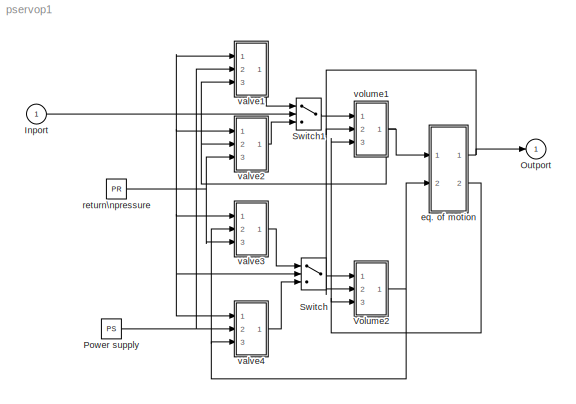
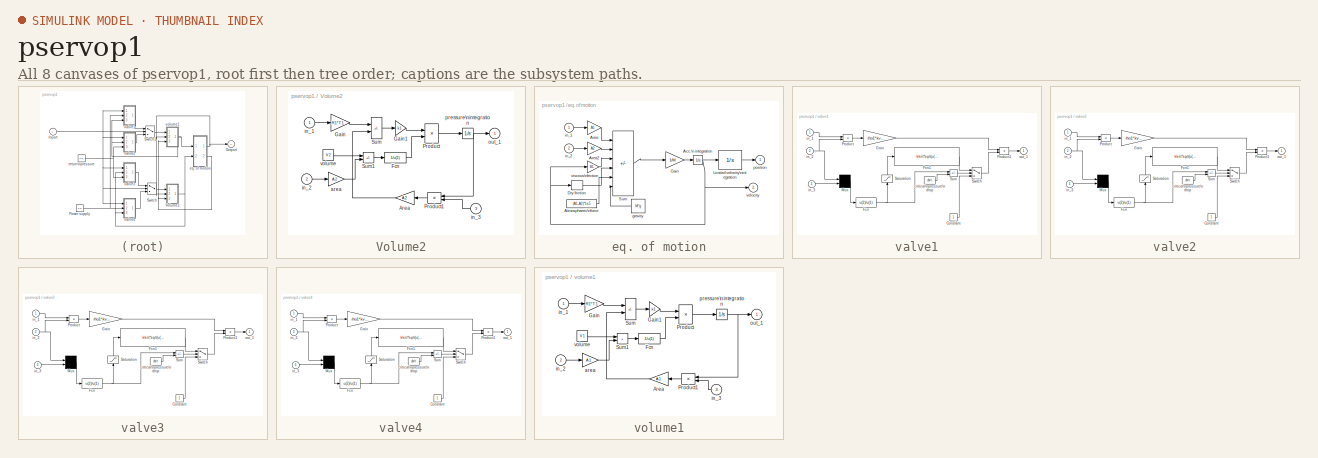
[diagram: thumbnail index - all 8 canvases of the model, root first then tree order]
MODEL pservop1
KIND model
CONFIG AbsTol = 1e-3
CONFIG FixedStep = auto
CONFIG MaxStep = 10
CONFIG RelTol = 1e-3
CONFIG Solver = ode45
CONFIG SolverMode = Auto
CONFIG StartTime = 0.0
CONFIG StopTime = 999999
BLOCK [Inport] Inport
  DataType = auto
  Interpolate = on
  Port = 1
  PortWidth = -1
  SampleTime = -1
  SignalType = auto
BLOCK [Outport] Outport
  InitialOutput = []
  OutputWhenDisabled = held
  Port = 1
BLOCK [Constant] Power supply
  Value = PS
BLOCK [Switch] Switch
  Threshold = 0
BLOCK [Switch] Switch1
  Threshold = 0
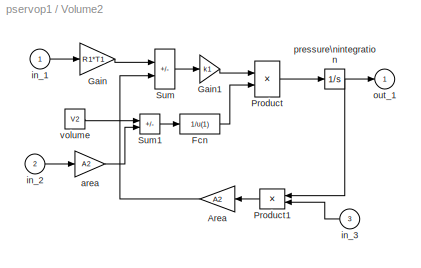
BLOCK [SubSystem] Volume2
  Ports = [3, 1, 0, 0, 0]
  ShowPortLabels = off
BLOCK [Gain] Volume2/Area
  Gain = A2
  SaturateOnIntegerOverflow = on
BLOCK [Fcn] Volume2/Fcn
  Expr = 1/u(1)
BLOCK [Gain] Volume2/Gain
  Gain = R1*T1
  SaturateOnIntegerOverflow = on
BLOCK [Gain] Volume2/Gain1
  Gain = k1
  SaturateOnIntegerOverflow = on
BLOCK [Product] Volume2/Product
  Inputs = 2
  Ports = [2, 1, 0, 0, 0]
  SaturateOnIntegerOverflow = on
BLOCK [Product] Volume2/Product1
  Inputs = 2
  Ports = [2, 1, 0, 0, 0]
  SaturateOnIntegerOverflow = on
BLOCK [Sum] Volume2/Sum
  IconShape = rectangular
  Inputs = -+
  Ports = [2, 1, 0, 0, 0]
  SaturateOnIntegerOverflow = on
BLOCK [Sum] Volume2/Sum1
  IconShape = rectangular
  Inputs = +-
  Ports = [2, 1, 0, 0, 0]
  SaturateOnIntegerOverflow = on
BLOCK [Gain] Volume2/area
  Gain = A2
  SaturateOnIntegerOverflow = on
BLOCK [Inport] Volume2/in_1
  DataType = auto
  Interpolate = on
  Port = 1
  PortWidth = -1
  SampleTime = -1
  SignalType = auto
BLOCK [Inport] Volume2/in_2
  DataType = auto
  Interpolate = on
  Port = 2
  PortWidth = -1
  SampleTime = -1
  SignalType = auto
BLOCK [Inport] Volume2/in_3
  DataType = auto
  Interpolate = on
  Port = 3
  PortWidth = -1
  SampleTime = -1
  SignalType = auto
BLOCK [Outport] Volume2/out_1
  InitialOutput = []
  OutputWhenDisabled = held
  Port = 1
BLOCK [Integrator] Volume2/pressure\nintegration
  AbsoluteTolerance = auto
  ExternalReset = none
  InitialCondition = P20
  InitialConditionSource = internal
  LimitOutput = off
  LowerSaturationLimit = -inf
  Ports = [1, 1, 0, 0, 0]
  ShowSaturationPort = off
  ShowStatePort = off
  UpperSaturationLimit = inf
BLOCK [Constant] Volume2/volume
  Value = V2
BLOCK [SubSystem] eq. of motion
  Ports = [2, 2, 0, 0, 0]
  ShowPortLabels = off
BLOCK [Integrator] eq. of motion/Acc.\n integration
  AbsoluteTolerance = auto
  ExternalReset = none
  InitialCondition = 0
  InitialConditionSource = internal
  LimitOutput = off
  LowerSaturationLimit = -inf
  Ports = [1, 1, 0, 0, 0]
  ShowSaturationPort = off
  ShowStatePort = off
  UpperSaturationLimit = inf
BLOCK [Gain] eq. of motion/Area
  Gain = A1
  SaturateOnIntegerOverflow = on
BLOCK [Gain] eq. of motion/Area2
  Gain = A2
  SaturateOnIntegerOverflow = on
BLOCK [Constant] eq. of motion/Atmosphaeric\nforce
  Value = (A1-A2)*1e5
BLOCK [Relay] eq. of motion/Dry friction
  OffOutputValue = -Fdry
  OffSwitchValue = 0
  OnOutputValue = Fdry
  OnSwitchValue = 0
BLOCK [Gain] eq. of motion/Gain
  Gain = 1/M
  SaturateOnIntegerOverflow = on
BLOCK [Integrator] eq. of motion/Limited velocity\nintegration
  AbsoluteTolerance = auto
  ExternalReset = none
  InitialCondition = X0
  InitialConditionSource = internal
  LimitOutput = on
  LowerSaturationLimit = -0.245
  Ports = [1, 1, 0, 0, 0]
  ShowSaturationPort = off
  ShowStatePort = off
  UpperSaturationLimit = 0.245
BLOCK [Sum] eq. of motion/Sum
  IconShape = rectangular
  Inputs = +----+
  Ports = [6, 1, 0, 0, 0]
  SaturateOnIntegerOverflow = on
BLOCK [Constant] eq. of motion/gravity
  Value = M*g
BLOCK [Inport] eq. of motion/in_1
  DataType = auto
  Interpolate = on
  Port = 1
  PortWidth = -1
  SampleTime = -1
  SignalType = auto
BLOCK [Inport] eq. of motion/in_2
  DataType = auto
  Interpolate = on
  Port = 2
  PortWidth = -1
  SampleTime = -1
  SignalType = auto
BLOCK [Outport] eq. of motion/position
  InitialOutput = []
  OutputWhenDisabled = held
  Port = 1
BLOCK [Outport] eq. of motion/velocity
  InitialOutput = []
  OutputWhenDisabled = held
  Port = 2
BLOCK [Gain] eq. of motion/viscous\nfriction
  Gain = B1
  SaturateOnIntegerOverflow = on
BLOCK [Constant] return\npressure
  Value = PR
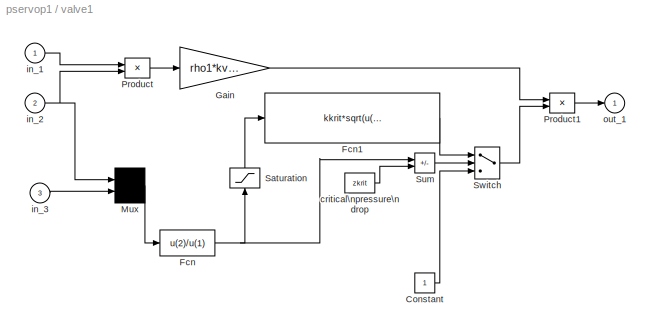
BLOCK [SubSystem] valve1
  Ports = [3, 1, 0, 0, 0]
  ShowPortLabels = off
BLOCK [Constant] valve1/Constant
  Value = 1
BLOCK [Fcn] valve1/Fcn
  Expr = u(2)/u(1)
BLOCK [Fcn] valve1/Fcn1
  Expr = kkrit*sqrt(u(1)^(2/k1)-u(1)^((k1+1)/k1))
BLOCK [Gain] valve1/Gain
  Gain = rho1*kvalve
  SaturateOnIntegerOverflow = on
BLOCK [Mux] valve1/Mux
  DisplayOption = none
  Inputs = 2
  Ports = [2, 1, 0, 0, 0]
BLOCK [Product] valve1/Product
  Inputs = 2
  Ports = [2, 1, 0, 0, 0]
  SaturateOnIntegerOverflow = on
BLOCK [Product] valve1/Product1
  Inputs = 2
  Ports = [2, 1, 0, 0, 0]
  SaturateOnIntegerOverflow = on
BLOCK [Saturate] valve1/Saturation
  LowerLimit = 0
  UpperLimit = 1
BLOCK [Sum] valve1/Sum
  IconShape = rectangular
  Inputs = +-
  Ports = [2, 1, 0, 0, 0]
  SaturateOnIntegerOverflow = on
BLOCK [Switch] valve1/Switch
  Threshold = 0
BLOCK [Constant] valve1/critical\npressure\ndrop
  Value = zkrit
BLOCK [Inport] valve1/in_1
  DataType = auto
  Interpolate = on
  Port = 1
  PortWidth = -1
  SampleTime = -1
  SignalType = auto
BLOCK [Inport] valve1/in_2
  DataType = auto
  Interpolate = on
  Port = 2
  PortWidth = -1
  SampleTime = -1
  SignalType = auto
BLOCK [Inport] valve1/in_3
  DataType = auto
  Interpolate = on
  Port = 3
  PortWidth = -1
  SampleTime = -1
  SignalType = auto
BLOCK [Outport] valve1/out_1
  InitialOutput = []
  OutputWhenDisabled = held
  Port = 1
BLOCK [SubSystem] valve2
  Ports = [3, 1, 0, 0, 0]
  ShowPortLabels = off
BLOCK [Constant] valve2/Constant
  Value = 1
BLOCK [Fcn] valve2/Fcn
  Expr = u(2)/u(1)
BLOCK [Fcn] valve2/Fcn1
  Expr = kkrit*sqrt(u(1)^(2/k1)-u(1)^((k1+1)/k1))
BLOCK [Gain] valve2/Gain
  Gain = rho1*kvalve
  SaturateOnIntegerOverflow = on
BLOCK [Mux] valve2/Mux
  DisplayOption = none
  Inputs = 2
  Ports = [2, 1, 0, 0, 0]
BLOCK [Product] valve2/Product
  Inputs = 2
  Ports = [2, 1, 0, 0, 0]
  SaturateOnIntegerOverflow = on
BLOCK [Product] valve2/Product1
  Inputs = 2
  Ports = [2, 1, 0, 0, 0]
  SaturateOnIntegerOverflow = on
BLOCK [Saturate] valve2/Saturation
  LowerLimit = 0
  UpperLimit = 1
BLOCK [Sum] valve2/Sum
  IconShape = rectangular
  Inputs = +-
  Ports = [2, 1, 0, 0, 0]
  SaturateOnIntegerOverflow = on
BLOCK [Switch] valve2/Switch
  Threshold = 0
BLOCK [Constant] valve2/critical\npressure\ndrop
  Value = zkrit
BLOCK [Inport] valve2/in_1
  DataType = auto
  Interpolate = on
  Port = 1
  PortWidth = -1
  SampleTime = -1
  SignalType = auto
BLOCK [Inport] valve2/in_2
  DataType = auto
  Interpolate = on
  Port = 2
  PortWidth = -1
  SampleTime = -1
  SignalType = auto
BLOCK [Inport] valve2/in_3
  DataType = auto
  Interpolate = on
  Port = 3
  PortWidth = -1
  SampleTime = -1
  SignalType = auto
BLOCK [Outport] valve2/out_1
  InitialOutput = []
  OutputWhenDisabled = held
  Port = 1
BLOCK [SubSystem] valve3
  Ports = [3, 1, 0, 0, 0]
  ShowPortLabels = off
BLOCK [Constant] valve3/Constant
  Value = 1
BLOCK [Fcn] valve3/Fcn
  Expr = u(2)/u(1)
BLOCK [Fcn] valve3/Fcn1
  Expr = kkrit*sqrt(u(1)^(2/k1)-u(1)^((k1+1)/k1))
BLOCK [Gain] valve3/Gain
  Gain = rho1*kvalve
  SaturateOnIntegerOverflow = on
BLOCK [Mux] valve3/Mux
  DisplayOption = none
  Inputs = 2
  Ports = [2, 1, 0, 0, 0]
BLOCK [Product] valve3/Product
  Inputs = 2
  Ports = [2, 1, 0, 0, 0]
  SaturateOnIntegerOverflow = on
BLOCK [Product] valve3/Product1
  Inputs = 2
  Ports = [2, 1, 0, 0, 0]
  SaturateOnIntegerOverflow = on
BLOCK [Saturate] valve3/Saturation
  LowerLimit = 0
  UpperLimit = 1
BLOCK [Sum] valve3/Sum
  IconShape = rectangular
  Inputs = +-
  Ports = [2, 1, 0, 0, 0]
  SaturateOnIntegerOverflow = on
BLOCK [Switch] valve3/Switch
  Threshold = 0
BLOCK [Constant] valve3/critical\npressure\ndrop
  Value = zkrit
BLOCK [Inport] valve3/in_1
  DataType = auto
  Interpolate = on
  Port = 1
  PortWidth = -1
  SampleTime = -1
  SignalType = auto
BLOCK [Inport] valve3/in_2
  DataType = auto
  Interpolate = on
  Port = 2
  PortWidth = -1
  SampleTime = -1
  SignalType = auto
BLOCK [Inport] valve3/in_3
  DataType = auto
  Interpolate = on
  Port = 3
  PortWidth = -1
  SampleTime = -1
  SignalType = auto
BLOCK [Outport] valve3/out_1
  InitialOutput = []
  OutputWhenDisabled = held
  Port = 1
BLOCK [SubSystem] valve4
  Ports = [3, 1, 0, 0, 0]
  ShowPortLabels = off
BLOCK [Constant] valve4/Constant
  Value = 1
BLOCK [Fcn] valve4/Fcn
  Expr = u(2)/u(1)
BLOCK [Fcn] valve4/Fcn1
  Expr = kkrit*sqrt(u(1)^(2/k1)-u(1)^((k1+1)/k1))
BLOCK [Gain] valve4/Gain
  Gain = rho1*kvalve
  SaturateOnIntegerOverflow = on
BLOCK [Mux] valve4/Mux
  DisplayOption = none
  Inputs = 2
  Ports = [2, 1, 0, 0, 0]
BLOCK [Product] valve4/Product
  Inputs = 2
  Ports = [2, 1, 0, 0, 0]
  SaturateOnIntegerOverflow = on
BLOCK [Product] valve4/Product1
  Inputs = 2
  Ports = [2, 1, 0, 0, 0]
  SaturateOnIntegerOverflow = on
BLOCK [Saturate] valve4/Saturation
  LowerLimit = 0
  UpperLimit = 1
BLOCK [Sum] valve4/Sum
  IconShape = rectangular
  Inputs = +-
  Ports = [2, 1, 0, 0, 0]
  SaturateOnIntegerOverflow = on
BLOCK [Switch] valve4/Switch
  Threshold = 0
BLOCK [Constant] valve4/critical\npressure\ndrop
  Value = zkrit
BLOCK [Inport] valve4/in_1
  DataType = auto
  Interpolate = on
  Port = 1
  PortWidth = -1
  SampleTime = -1
  SignalType = auto
BLOCK [Inport] valve4/in_2
  DataType = auto
  Interpolate = on
  Port = 2
  PortWidth = -1
  SampleTime = -1
  SignalType = auto
BLOCK [Inport] valve4/in_3
  DataType = auto
  Interpolate = on
  Port = 3
  PortWidth = -1
  SampleTime = -1
  SignalType = auto
BLOCK [Outport] valve4/out_1
  InitialOutput = []
  OutputWhenDisabled = held
  Port = 1
BLOCK [SubSystem] volume1
  Ports = [3, 1, 0, 0, 0]
  ShowPortLabels = off
BLOCK [Gain] volume1/Area
  Gain = A1
  SaturateOnIntegerOverflow = on
BLOCK [Fcn] volume1/Fcn
  Expr = 1/u(1)
BLOCK [Gain] volume1/Gain
  Gain = R1*T1
  SaturateOnIntegerOverflow = on
BLOCK [Gain] volume1/Gain1
  Gain = k1
  SaturateOnIntegerOverflow = on
BLOCK [Product] volume1/Product
  Inputs = 2
  Ports = [2, 1, 0, 0, 0]
  SaturateOnIntegerOverflow = on
BLOCK [Product] volume1/Product1
  Inputs = 2
  Ports = [2, 1, 0, 0, 0]
  SaturateOnIntegerOverflow = on
BLOCK [Sum] volume1/Sum
  IconShape = rectangular
  Inputs = +-
  Ports = [2, 1, 0, 0, 0]
  SaturateOnIntegerOverflow = on
BLOCK [Sum] volume1/Sum1
  IconShape = rectangular
  Inputs = ++
  Ports = [2, 1, 0, 0, 0]
  SaturateOnIntegerOverflow = on
BLOCK [Gain] volume1/area
  Gain = A1
  SaturateOnIntegerOverflow = on
BLOCK [Inport] volume1/in_1
  DataType = auto
  Interpolate = on
  Port = 1
  PortWidth = -1
  SampleTime = -1
  SignalType = auto
BLOCK [Inport] volume1/in_2
  DataType = auto
  Interpolate = on
  Port = 2
  PortWidth = -1
  SampleTime = -1
  SignalType = auto
BLOCK [Inport] volume1/in_3
  DataType = auto
  Interpolate = on
  Port = 3
  PortWidth = -1
  SampleTime = -1
  SignalType = auto
BLOCK [Outport] volume1/out_1
  InitialOutput = []
  OutputWhenDisabled = held
  Port = 1
BLOCK [Integrator] volume1/pressure\nintegration
  AbsoluteTolerance = auto
  ExternalReset = none
  InitialCondition = P10
  InitialConditionSource = internal
  LimitOutput = off
  LowerSaturationLimit = -inf
  Ports = [1, 1, 0, 0, 0]
  ShowSaturationPort = off
  ShowStatePort = off
  UpperSaturationLimit = inf
BLOCK [Constant] volume1/volume
  Value = V1
NET Inport:1 -> Switch1:2, Switch:2, valve1:1, valve2:1, valve3:1, valve4:1
NET Power supply:1 -> valve1:2, valve4:2
LINE Switch1:1 -> volume1:1
LINE Switch:1 -> Volume2:1
LINE Volume2/Area:1 -> Volume2/Sum:2
LINE Volume2/Fcn:1 -> Volume2/Product:2
LINE Volume2/Gain1:1 -> Volume2/Product:1
LINE Volume2/Gain:1 -> Volume2/Sum:1
LINE Volume2/Product1:1 -> Volume2/Area:1
LINE Volume2/Product:1 -> Volume2/pressure\nintegration:1
LINE Volume2/Sum1:1 -> Volume2/Fcn:1
LINE Volume2/Sum:1 -> Volume2/Gain1:1
LINE Volume2/area:1 -> Volume2/Sum1:2
LINE Volume2/in_1:1 -> Volume2/Gain:1
LINE Volume2/in_2:1 -> Volume2/area:1
LINE Volume2/in_3:1 -> Volume2/Product1:2
NET Volume2/pressure\nintegration:1 -> Volume2/Product1:1, Volume2/out_1:1
LINE Volume2/volume:1 -> Volume2/Sum1:1
NET Volume2:1 -> eq. of motion:2, valve3:2, valve4:3
NET eq. of motion/Acc.\n integration:1 -> eq. of motion/Dry friction:1, eq. of motion/Limited velocity\nintegration:1, eq. of motion/velocity:1, eq. of motion/viscous\nfriction:1
LINE eq. of motion/Area2:1 -> eq. of motion/Sum:2
LINE eq. of motion/Area:1 -> eq. of motion/Sum:1
LINE eq. of motion/Atmosphaeric\nforce:1 -> eq. of motion/Sum:5
LINE eq. of motion/Dry friction:1 -> eq. of motion/Sum:4
LINE eq. of motion/Gain:1 -> eq. of motion/Acc.\n integration:1
LINE eq. of motion/Limited velocity\nintegration:1 -> eq. of motion/position:1
LINE eq. of motion/Sum:1 -> eq. of motion/Gain:1
LINE eq. of motion/gravity:1 -> eq. of motion/Sum:6
LINE eq. of motion/in_1:1 -> eq. of motion/Area:1
LINE eq. of motion/in_2:1 -> eq. of motion/Area2:1
LINE eq. of motion/viscous\nfriction:1 -> eq. of motion/Sum:3
NET eq. of motion:1 -> Outport:1, Volume2:2, volume1:2
NET eq. of motion:2 -> Volume2:3, volume1:3
NET return\npressure:1 -> valve2:3, valve3:3
LINE valve1/Constant:1 -> valve1/Switch:3
LINE valve1/Fcn1:1 -> valve1/Switch:1
NET valve1/Fcn:1 -> valve1/Saturation:1, valve1/Sum:1
LINE valve1/Gain:1 -> valve1/Product1:1
LINE valve1/Mux:1 -> valve1/Fcn:1
LINE valve1/Product1:1 -> valve1/out_1:1
LINE valve1/Product:1 -> valve1/Gain:1
LINE valve1/Saturation:1 -> valve1/Fcn1:1
LINE valve1/Sum:1 -> valve1/Switch:2
LINE valve1/Switch:1 -> valve1/Product1:2
LINE valve1/critical\npressure\ndrop:1 -> valve1/Sum:2
LINE valve1/in_1:1 -> valve1/Product:1
NET valve1/in_2:1 -> valve1/Mux:1, valve1/Product:2
LINE valve1/in_3:1 -> valve1/Mux:2
LINE valve1:1 -> Switch1:1
LINE valve2/Constant:1 -> valve2/Switch:3
LINE valve2/Fcn1:1 -> valve2/Switch:1
NET valve2/Fcn:1 -> valve2/Saturation:1, valve2/Sum:1
LINE valve2/Gain:1 -> valve2/Product1:1
LINE valve2/Mux:1 -> valve2/Fcn:1
LINE valve2/Product1:1 -> valve2/out_1:1
LINE valve2/Product:1 -> valve2/Gain:1
LINE valve2/Saturation:1 -> valve2/Fcn1:1
LINE valve2/Sum:1 -> valve2/Switch:2
LINE valve2/Switch:1 -> valve2/Product1:2
LINE valve2/critical\npressure\ndrop:1 -> valve2/Sum:2
LINE valve2/in_1:1 -> valve2/Product:1
NET valve2/in_2:1 -> valve2/Mux:1, valve2/Product:2
LINE valve2/in_3:1 -> valve2/Mux:2
LINE valve2:1 -> Switch1:3
LINE valve3/Constant:1 -> valve3/Switch:3
LINE valve3/Fcn1:1 -> valve3/Switch:1
NET valve3/Fcn:1 -> valve3/Saturation:1, valve3/Sum:1
LINE valve3/Gain:1 -> valve3/Product1:1
LINE valve3/Mux:1 -> valve3/Fcn:1
LINE valve3/Product1:1 -> valve3/out_1:1
LINE valve3/Product:1 -> valve3/Gain:1
LINE valve3/Saturation:1 -> valve3/Fcn1:1
LINE valve3/Sum:1 -> valve3/Switch:2
LINE valve3/Switch:1 -> valve3/Product1:2
LINE valve3/critical\npressure\ndrop:1 -> valve3/Sum:2
LINE valve3/in_1:1 -> valve3/Product:1
NET valve3/in_2:1 -> valve3/Mux:1, valve3/Product:2
LINE valve3/in_3:1 -> valve3/Mux:2
LINE valve3:1 -> Switch:1
LINE valve4/Constant:1 -> valve4/Switch:3
LINE valve4/Fcn1:1 -> valve4/Switch:1
NET valve4/Fcn:1 -> valve4/Saturation:1, valve4/Sum:1
LINE valve4/Gain:1 -> valve4/Product1:1
LINE valve4/Mux:1 -> valve4/Fcn:1
LINE valve4/Product1:1 -> valve4/out_1:1
LINE valve4/Product:1 -> valve4/Gain:1
LINE valve4/Saturation:1 -> valve4/Fcn1:1
LINE valve4/Sum:1 -> valve4/Switch:2
LINE valve4/Switch:1 -> valve4/Product1:2
LINE valve4/critical\npressure\ndrop:1 -> valve4/Sum:2
LINE valve4/in_1:1 -> valve4/Product:1
NET valve4/in_2:1 -> valve4/Mux:1, valve4/Product:2
LINE valve4/in_3:1 -> valve4/Mux:2
LINE valve4:1 -> Switch:3
LINE volume1/Area:1 -> volume1/Sum:2
LINE volume1/Fcn:1 -> volume1/Product:2
LINE volume1/Gain1:1 -> volume1/Product:1
LINE volume1/Gain:1 -> volume1/Sum:1
LINE volume1/Product1:1 -> volume1/Area:1
LINE volume1/Product:1 -> volume1/pressure\nintegration:1
LINE volume1/Sum1:1 -> volume1/Fcn:1
LINE volume1/Sum:1 -> volume1/Gain1:1
LINE volume1/area:1 -> volume1/Sum1:2
LINE volume1/in_1:1 -> volume1/Gain:1
LINE volume1/in_2:1 -> volume1/area:1
LINE volume1/in_3:1 -> volume1/Product1:2
NET volume1/pressure\nintegration:1 -> volume1/Product1:1, volume1/out_1:1
LINE volume1/volume:1 -> volume1/Sum1:1
NET volume1:1 -> eq. of motion:1, valve1:3, valve2:2
note: NET lines group one-source signal fan-out (src -> all destinations, sorted); 1:1 wires keep LINE
